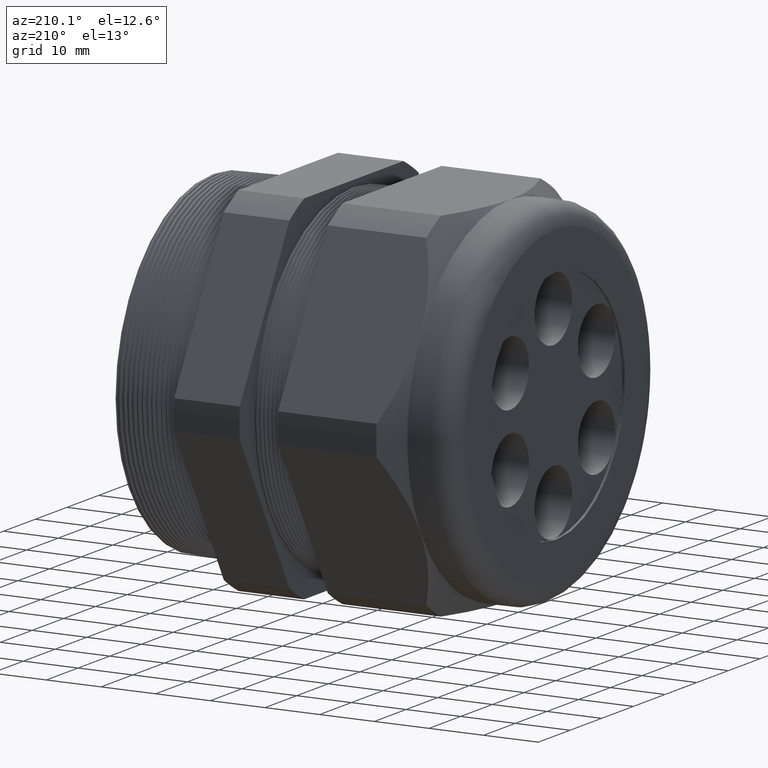
[diagram: clean part render]
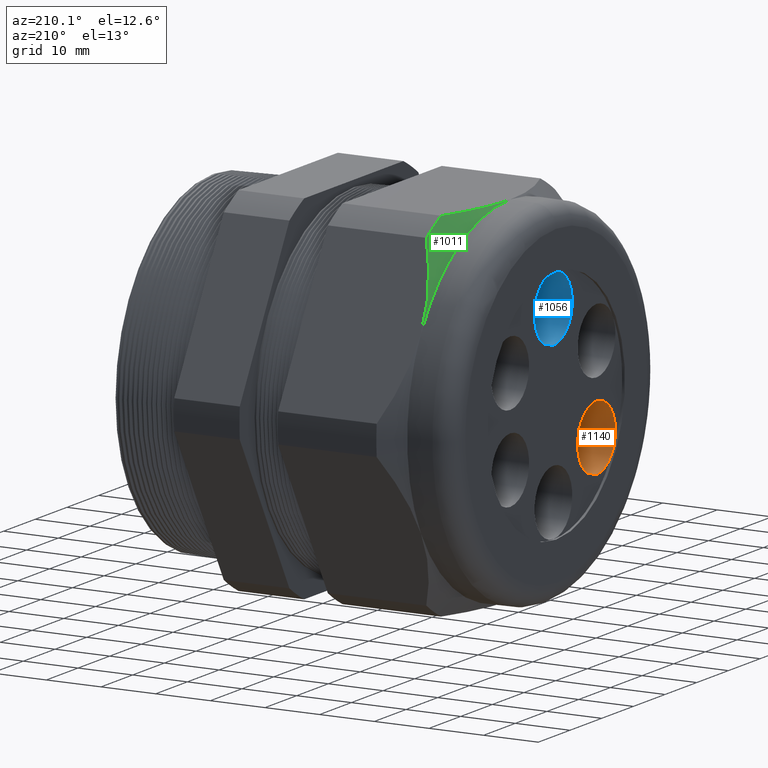
[diagram: same view with three faces highlighted in distinct colors, each labeled with its STEP entity id]
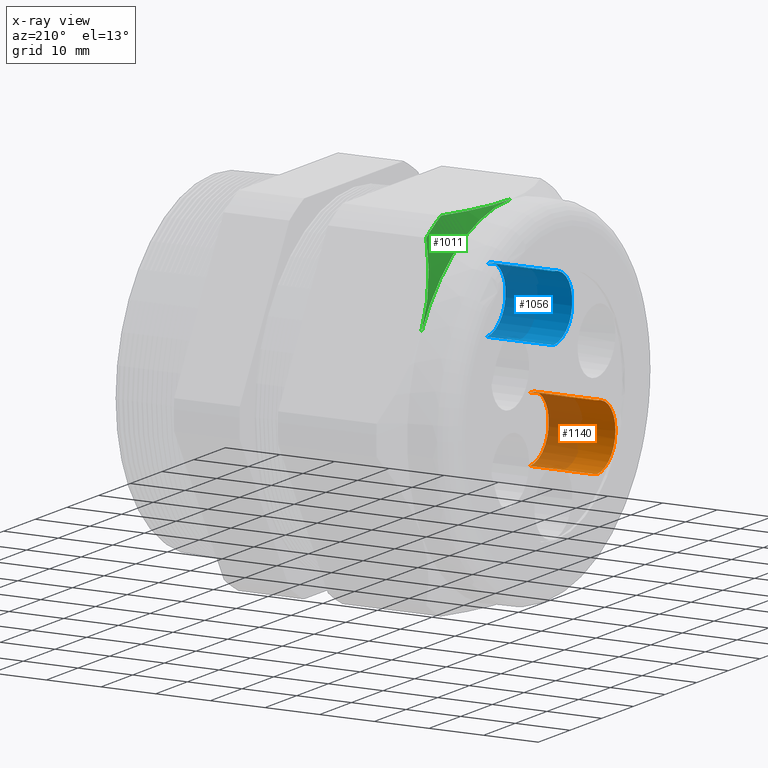
[diagram: x-ray of the same camera — body ghosted, the three highlighted faces saturated]
A machine part, auxiliary view with three faces highlighted in distinct colors.
The next image is the same camera in x-ray (body ghosted, the three faces saturated) — at least one of them is partly hidden behind the body in this view.
Their STEP definitions:

[orange] entity #1140 — the highlighted cylindrical surface (partial cylindrical patch) has radius 5.969 mm, axis along (-1, 0, 0).
#1125 = VERTEX_POINT ( 'NONE', #3551 ) ;
#1137 = ORIENTED_EDGE ( 'NONE', *, *, #1138, .F. ) ;
#1138 = EDGE_CURVE ( 'NONE', #1235, #1163, #3588, .T. ) ;
#1140 = ADVANCED_FACE ( 'NONE', ( #3580 ), #3645, .F. ) ;
#1141 = ORIENTED_EDGE ( 'NONE', *, *, #1162, .T. ) ;
#1162 = EDGE_CURVE ( 'NONE', #1170, #1163, #3662, .T. ) ;
#1163 = VERTEX_POINT ( 'NONE', #3653 ) ;
#1168 = ORIENTED_EDGE ( 'NONE', *, *, #1169, .T. ) ;
#1169 = EDGE_CURVE ( 'NONE', #1125, #1170, #3707, .T. ) ;
#1170 = VERTEX_POINT ( 'NONE', #3703 ) ;
#1192 = EDGE_LOOP ( 'NONE', ( #1236, #1168, #1141, #1137 ) ) ;
#1235 = VERTEX_POINT ( 'NONE', #3738 ) ;
#1236 = ORIENTED_EDGE ( 'NONE', *, *, #1237, .F. ) ;
#1237 = EDGE_CURVE ( 'NONE', #1125, #1235, #3800, .T. ) ;
#3551 = CARTESIAN_POINT ( 'NONE',  ( -1.739999999999999500, -0.5361216864667952600, -0.5445299999999987400 ) ) ;
#3580 = FACE_OUTER_BOUND ( 'NONE', #1192, .T. ) ;
#3585 = DIRECTION ( 'NONE',  ( -1.000000000000000000, 0.0000000000000000000, 0.0000000000000000000 ) ) ;
#3586 = VECTOR ( 'NONE', #3585, 39.37007874015748100 ) ;
#3587 = CARTESIAN_POINT ( 'NONE',  ( -1.739999999999999500, -0.5361216864667952600, -0.07452999999999884700 ) ) ;
#3588 = LINE ( 'NONE', #3587, #3586 ) ;
#3640 = DIRECTION ( 'NONE',  ( 0.0000000000000000000, 0.0000000000000000000, 1.000000000000000000 ) ) ;
#3641 = DIRECTION ( 'NONE',  ( -1.000000000000000000, 0.0000000000000000000, 0.0000000000000000000 ) ) ;
#3642 = CARTESIAN_POINT ( 'NONE',  ( -1.739999999999999500, -0.5361216864667952600, -0.3095299999999987500 ) ) ;
#3643 = AXIS2_PLACEMENT_3D ( 'NONE', #3642, #3641, #3640 ) ;
#3645 = CYLINDRICAL_SURFACE ( 'NONE', #3643, 0.2349999999999999300 ) ;
#3653 = CARTESIAN_POINT ( 'NONE',  ( -2.219999999999999800, -0.5361216864667952600, -0.07452999999999884700 ) ) ;
#3654 = DIRECTION ( 'NONE',  ( 0.0000000000000000000, 0.8660254037844397100, 0.4999999999999980600 ) ) ;
#3655 = DIRECTION ( 'NONE',  ( -1.000000000000000000, 0.0000000000000000000, 0.0000000000000000000 ) ) ;
#3656 = CARTESIAN_POINT ( 'NONE',  ( -2.219999999999999800, -0.5361216864667952600, -0.3095299999999987500 ) ) ;
#3657 = AXIS2_PLACEMENT_3D ( 'NONE', #3656, #3655, #3654 ) ;
#3662 = CIRCLE ( 'NONE', #3657, 0.2349999999999999000 ) ;
#3703 = CARTESIAN_POINT ( 'NONE',  ( -2.219999999999999800, -0.5361216864667952600, -0.5445299999999987400 ) ) ;
#3704 = DIRECTION ( 'NONE',  ( -1.000000000000000000, 0.0000000000000000000, 0.0000000000000000000 ) ) ;
#3705 = VECTOR ( 'NONE', #3704, 39.37007874015748100 ) ;
#3706 = CARTESIAN_POINT ( 'NONE',  ( -1.739999999999999500, -0.5361216864667952600, -0.5445299999999987400 ) ) ;
#3707 = LINE ( 'NONE', #3706, #3705 ) ;
#3738 = CARTESIAN_POINT ( 'NONE',  ( -1.739999999999999500, -0.5361216864667952600, -0.07452999999999884700 ) ) ;
#3796 = DIRECTION ( 'NONE',  ( 0.0000000000000000000, 0.8660254037844397100, 0.4999999999999980600 ) ) ;
#3797 = DIRECTION ( 'NONE',  ( -1.000000000000000000, 0.0000000000000000000, 0.0000000000000000000 ) ) ;
#3798 = CARTESIAN_POINT ( 'NONE',  ( -1.739999999999999500, -0.5361216864667952600, -0.3095299999999987500 ) ) ;
#3799 = AXIS2_PLACEMENT_3D ( 'NONE', #3798, #3797, #3796 ) ;
#3800 = CIRCLE ( 'NONE', #3799, 0.2349999999999999000 ) ;

[blue] entity #1056 — the highlighted cylindrical surface (partial cylindrical patch) has radius 5.969 mm, axis along (-1, 0, 0).
#1045 = VERTEX_POINT ( 'NONE', #3439 ) ;
#1046 = EDGE_CURVE ( 'NONE', #1045, #1047, #3438, .T. ) ;
#1047 = VERTEX_POINT ( 'NONE', #3433 ) ;
#1048 = ORIENTED_EDGE ( 'NONE', *, *, #1046, .F. ) ;
#1049 = ORIENTED_EDGE ( 'NONE', *, *, #1050, .T. ) ;
#1050 = EDGE_CURVE ( 'NONE', #1045, #1051, #3432, .T. ) ;
#1051 = VERTEX_POINT ( 'NONE', #3428 ) ;
#1053 = EDGE_LOOP ( 'NONE', ( #1048, #1049, #1089, #1240 ) ) ;
#1056 = ADVANCED_FACE ( 'NONE', ( #3480 ), #3479, .F. ) ;
#1088 = EDGE_CURVE ( 'NONE', #1051, #1177, #3488, .T. ) ;
#1089 = ORIENTED_EDGE ( 'NONE', *, *, #1088, .T. ) ;
#1177 = VERTEX_POINT ( 'NONE', #3690 ) ;
#1240 = ORIENTED_EDGE ( 'NONE', *, *, #1241, .F. ) ;
#1241 = EDGE_CURVE ( 'NONE', #1047, #1177, #3791, .T. ) ;
#3428 = CARTESIAN_POINT ( 'NONE',  ( -2.219999999999999800, 4.351654578836711400E-015, 0.3840600000000000100 ) ) ;
#3429 = DIRECTION ( 'NONE',  ( -1.000000000000000000, 0.0000000000000000000, 0.0000000000000000000 ) ) ;
#3430 = VECTOR ( 'NONE', #3429, 39.37007874015748100 ) ;
#3431 = CARTESIAN_POINT ( 'NONE',  ( -1.739999999999999500, 4.351654578836711400E-015, 0.3840600000000000100 ) ) ;
#3432 = LINE ( 'NONE', #3431, #3430 ) ;
#3433 = CARTESIAN_POINT ( 'NONE',  ( -1.739999999999999500, 4.322875379056747800E-015, 0.8540599999999999300 ) ) ;
#3434 = DIRECTION ( 'NONE',  ( 0.0000000000000000000, -6.982966722218762600E-015, -1.000000000000000000 ) ) ;
#3435 = DIRECTION ( 'NONE',  ( -1.000000000000000000, 0.0000000000000000000, 0.0000000000000000000 ) ) ;
#3436 = CARTESIAN_POINT ( 'NONE',  ( -1.739999999999999500, 4.322875379056747800E-015, 0.6190599999999999400 ) ) ;
#3437 = AXIS2_PLACEMENT_3D ( 'NONE', #3436, #3435, #3434 ) ;
#3438 = CIRCLE ( 'NONE', #3437, 0.2349999999999999600 ) ;
#3439 = CARTESIAN_POINT ( 'NONE',  ( -1.739999999999999500, 4.351654578836711400E-015, 0.3840600000000000100 ) ) ;
#3475 = DIRECTION ( 'NONE',  ( 0.0000000000000000000, 0.0000000000000000000, 1.000000000000000000 ) ) ;
#3476 = DIRECTION ( 'NONE',  ( -1.000000000000000000, 0.0000000000000000000, 0.0000000000000000000 ) ) ;
#3477 = CARTESIAN_POINT ( 'NONE',  ( -1.739999999999999500, 4.322875379056747800E-015, 0.6190599999999999400 ) ) ;
#3478 = AXIS2_PLACEMENT_3D ( 'NONE', #3477, #3476, #3475 ) ;
#3479 = CYLINDRICAL_SURFACE ( 'NONE', #3478, 0.2349999999999999600 ) ;
#3480 = FACE_OUTER_BOUND ( 'NONE', #1053, .T. ) ;
#3484 = DIRECTION ( 'NONE',  ( 0.0000000000000000000, -6.982966722218762600E-015, -1.000000000000000000 ) ) ;
#3485 = DIRECTION ( 'NONE',  ( -1.000000000000000000, 0.0000000000000000000, 0.0000000000000000000 ) ) ;
#3486 = CARTESIAN_POINT ( 'NONE',  ( -2.219999999999999800, 4.322875379056747800E-015, 0.6190599999999999400 ) ) ;
#3487 = AXIS2_PLACEMENT_3D ( 'NONE', #3486, #3485, #3484 ) ;
#3488 = CIRCLE ( 'NONE', #3487, 0.2349999999999999600 ) ;
#3690 = CARTESIAN_POINT ( 'NONE',  ( -2.219999999999999800, 4.322875379056747800E-015, 0.8540599999999999300 ) ) ;
#3788 = DIRECTION ( 'NONE',  ( -1.000000000000000000, 0.0000000000000000000, 0.0000000000000000000 ) ) ;
#3789 = VECTOR ( 'NONE', #3788, 39.37007874015748100 ) ;
#3790 = CARTESIAN_POINT ( 'NONE',  ( -1.739999999999999500, 4.322875379056747800E-015, 0.8540599999999999300 ) ) ;
#3791 = LINE ( 'NONE', #3790, #3789 ) ;

[green] entity #1011 — the highlighted conical surface has half-angle 45 deg.
#597 = EDGE_CURVE ( 'NONE', #613, #5487, #2618, .T. ) ;
#603 = EDGE_CURVE ( 'NONE', #5526, #604, #2649, .T. ) ;
#604 = VERTEX_POINT ( 'NONE', #2648 ) ;
#613 = VERTEX_POINT ( 'NONE', #2628 ) ;
#674 = EDGE_CURVE ( 'NONE', #604, #613, #2805, .T. ) ;
#1011 = ADVANCED_FACE ( 'NONE', ( #3415 ), #3414, .T. ) ;
#1012 = EDGE_LOOP ( 'NONE', ( #1013, #1014, #1015, #1016 ) ) ;
#1013 = ORIENTED_EDGE ( 'NONE', *, *, #5533, .T. ) ;
#1014 = ORIENTED_EDGE ( 'NONE', *, *, #597, .F. ) ;
#1015 = ORIENTED_EDGE ( 'NONE', *, *, #674, .F. ) ;
#1016 = ORIENTED_EDGE ( 'NONE', *, *, #603, .F. ) ;
#2603 = CARTESIAN_POINT ( 'NONE',  ( -1.909291999999999500, 0.0000000000000000000, 1.280000000000000000 ) ) ;
#2604 = CARTESIAN_POINT ( 'NONE',  ( -1.909291999999999500, 0.02672213078802234200, 1.280000000000000000 ) ) ;
#2605 = CARTESIAN_POINT ( 'NONE',  ( -1.908446342151620900, 0.05356854984720004600, 1.280000000000000000 ) ) ;
#2606 = CARTESIAN_POINT ( 'NONE',  ( -1.905123383299628200, 0.1067381207527689800, 1.280000000000000000 ) ) ;
#2607 = CARTESIAN_POINT ( 'NONE',  ( -1.902648074829802000, 0.1331626350846556200, 1.280000000000000000 ) ) ;
#2608 = CARTESIAN_POINT ( 'NONE',  ( -1.892905966014041500, 0.2119800413602719000, 1.279999999999999800 ) ) ;
#2609 = CARTESIAN_POINT ( 'NONE',  ( -1.883320795785701900, 0.2639163659910923100, 1.279999999999999800 ) ) ;
#2610 = CARTESIAN_POINT ( 'NONE',  ( -1.858730573868090800, 0.3667216529074577300, 1.279999999999999800 ) ) ;
#2611 = CARTESIAN_POINT ( 'NONE',  ( -1.843728725011120500, 0.4175912459415935300, 1.279999999999999800 ) ) ;
#2612 = CARTESIAN_POINT ( 'NONE',  ( -1.817760468264914900, 0.4932131617928015000, 1.279999999999999800 ) ) ;
#2613 = CARTESIAN_POINT ( 'NONE',  ( -1.808517794523389500, 0.5183220260809854300, 1.279999999999999800 ) ) ;
#2614 = CARTESIAN_POINT ( 'NONE',  ( -1.789160968299050800, 0.5678795841928971900, 1.280000000000000000 ) ) ;
#2615 = CARTESIAN_POINT ( 'NONE',  ( -1.779027095716830800, 0.5923894763832372500, 1.280000000000000000 ) ) ;
#2616 = CARTESIAN_POINT ( 'NONE',  ( -1.768492000000000000, 0.6166625008868301700, 1.280000000000000000 ) ) ;
#2618 = B_SPLINE_CURVE_WITH_KNOTS ( 'NONE', 3,
 ( #2616, #2615, #2614, #2613, #2612, #2611, #2610, #2609, #2608, #2607, #2606, #2605, #2604, #2603 ),
 .UNSPECIFIED., .F., .F.,
 ( 4, 2, 2, 2, 2, 2, 4 ),
 ( 0.02514202277783124400, 0.02714289194006080900, 0.02914376110229037100, 0.03314549942674950600, 0.03714723775120863700, 0.03914810691343820200, 0.04114897607566777400 ),
 .UNSPECIFIED. ) ;
#2628 = CARTESIAN_POINT ( 'NONE',  ( -1.768492000000000000, 0.6166625008868301700, 1.280000000000000000 ) ) ;
#2638 = CARTESIAN_POINT ( 'NONE',  ( -1.768492000000000200, 0.8001812664006666700, 1.174045391329238400 ) ) ;
#2639 = CARTESIAN_POINT ( 'NONE',  ( -1.789807280376754800, 0.8247366352740297400, 1.131514244841979000 ) ) ;
#2640 = CARTESIAN_POINT ( 'NONE',  ( -1.809379497512201100, 0.8496599179459888300, 1.088345852962745000 ) ) ;
#2641 = CARTESIAN_POINT ( 'NONE',  ( -1.844076898263658800, 0.9002675725821844800, 1.000690823880955300 ) ) ;
#2642 = CARTESIAN_POINT ( 'NONE',  ( -1.859065044692607100, 0.9257579459085134600, 0.9565402021758557800 ) ) ;
#2643 = CARTESIAN_POINT ( 'NONE',  ( -1.895822934946116200, 1.002877599663059900, 0.8229650436108608700 ) ) ;
#2644 = CARTESIAN_POINT ( 'NONE',  ( -1.909291999999998700, 1.055162852598235100, 0.7324043290405477500 ) ) ;
#2645 = CARTESIAN_POINT ( 'NONE',  ( -1.909291999999999500, 1.108512516844081900, 0.6400000000000005700 ) ) ;
#2648 = CARTESIAN_POINT ( 'NONE',  ( -1.768492000000000200, 0.8001812664006666700, 1.174045391329238400 ) ) ;
#2649 = B_SPLINE_CURVE_WITH_KNOTS ( 'NONE', 3,
 ( #2645, #2644, #2643, #2642, #2641, #2640, #2639, #2638 ),
 .UNSPECIFIED., .F., .F.,
 ( 4, 2, 2, 4 ),
 ( 0.01607611893436944300, 0.02410854275338649600, 0.02812475466289502500, 0.03214096657240355500 ),
 .UNSPECIFIED. ) ;
#2801 = DIRECTION ( 'NONE',  ( 0.0000000000000000000, 0.0000000000000000000, -1.000000000000000000 ) ) ;
#2802 = DIRECTION ( 'NONE',  ( 1.000000000000000000, 0.0000000000000000000, 0.0000000000000000000 ) ) ;
#2803 = CARTESIAN_POINT ( 'NONE',  ( -1.768492000000000200, 0.0000000000000000000, 0.0000000000000000000 ) ) ;
#2804 = AXIS2_PLACEMENT_3D ( 'NONE', #2803, #2802, #2801 ) ;
#2805 = CIRCLE ( 'NONE', #2804, 1.420799999999999800 ) ;
#3410 = DIRECTION ( 'NONE',  ( 0.0000000000000000000, 0.0000000000000000000, 1.000000000000000000 ) ) ;
#3411 = DIRECTION ( 'NONE',  ( 1.000000000000000000, 0.0000000000000000000, 0.0000000000000000000 ) ) ;
#3412 = AXIS2_PLACEMENT_3D ( 'NONE', #3421, #3411, #3410 ) ;
#3414 = CONICAL_SURFACE ( 'NONE', #3412, 1.280000000000000000, 0.7853981633974501700 ) ;
#3415 = FACE_OUTER_BOUND ( 'NONE', #1012, .T. ) ;
#3421 = CARTESIAN_POINT ( 'NONE',  ( -1.909291999999999500, 0.0000000000000000000, 0.0000000000000000000 ) ) ;
#4742 = CARTESIAN_POINT ( 'NONE',  ( -1.909291999999999500, 0.0000000000000000000, 1.280000000000000000 ) ) ;
#4791 = CARTESIAN_POINT ( 'NONE',  ( -1.909291999999999500, 1.108512516844081900, 0.6400000000000005700 ) ) ;
#4834 = DIRECTION ( 'NONE',  ( 0.0000000000000000000, 0.0000000000000000000, -1.000000000000000000 ) ) ;
#4835 = DIRECTION ( 'NONE',  ( 1.000000000000000000, 0.0000000000000000000, 0.0000000000000000000 ) ) ;
#4836 = AXIS2_PLACEMENT_3D ( 'NONE', #4843, #4835, #4834 ) ;
#4837 = CIRCLE ( 'NONE', #4836, 1.280000000000000000 ) ;
#4843 = CARTESIAN_POINT ( 'NONE',  ( -1.909291999999999500, 0.0000000000000000000, 0.0000000000000000000 ) ) ;
#5487 = VERTEX_POINT ( 'NONE', #4742 ) ;
#5526 = VERTEX_POINT ( 'NONE', #4791 ) ;
#5533 = EDGE_CURVE ( 'NONE', #5526, #5487, #4837, .T. ) ;